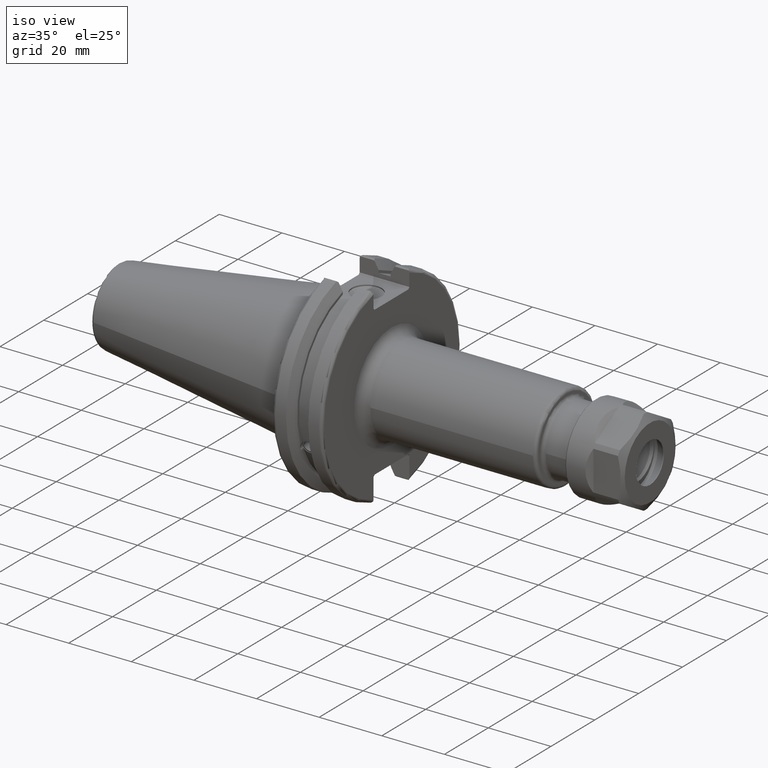
[diagram: clean part render]
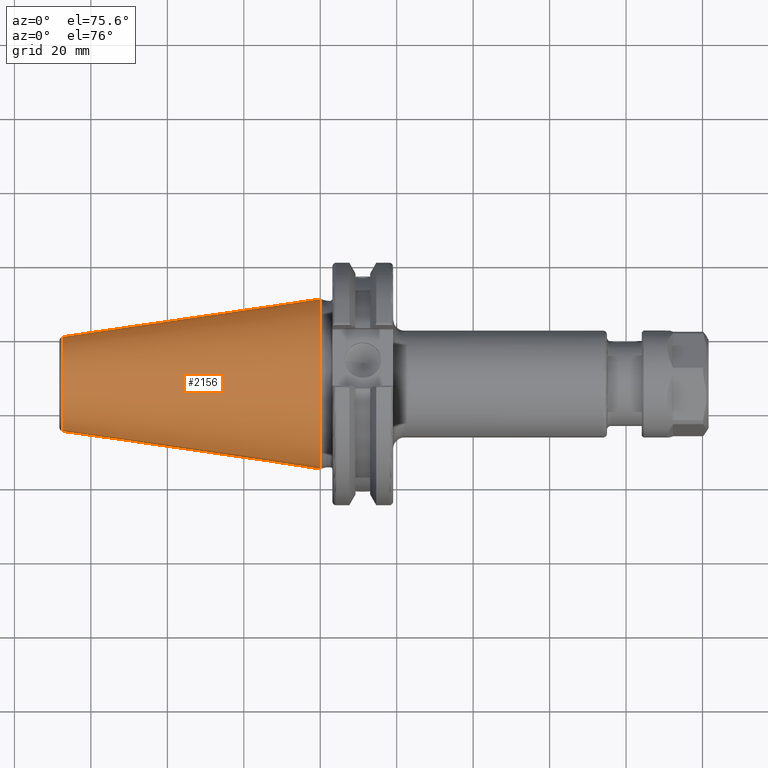
[diagram: tour spotlight — one face highlighted and labeled with its STEP entity id]
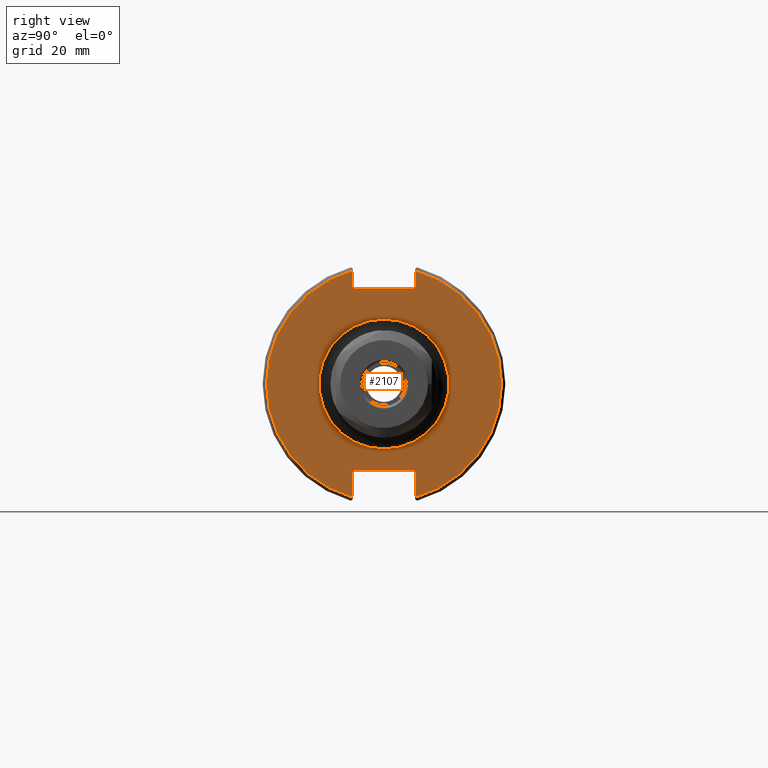
[diagram: tour spotlight — one face highlighted and labeled with its STEP entity id]
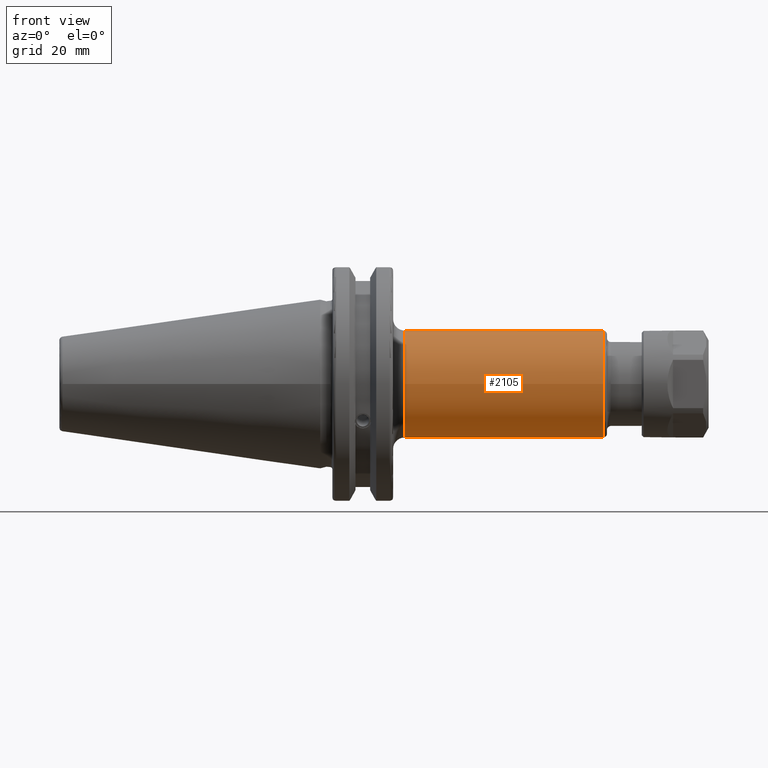
[diagram: tour spotlight — one face highlighted and labeled with its STEP entity id]
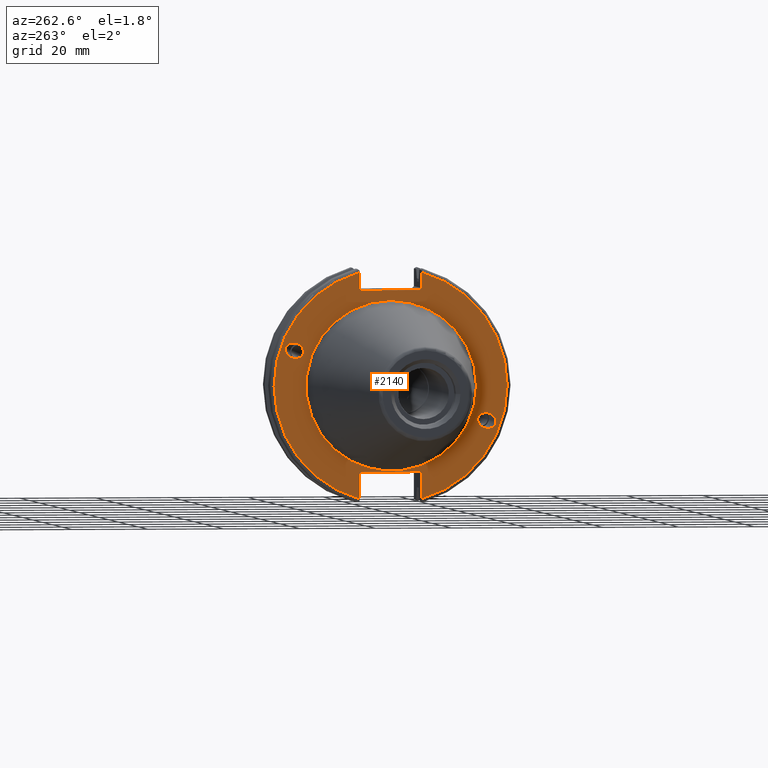
[diagram: tour spotlight — one face highlighted and labeled with its STEP entity id]
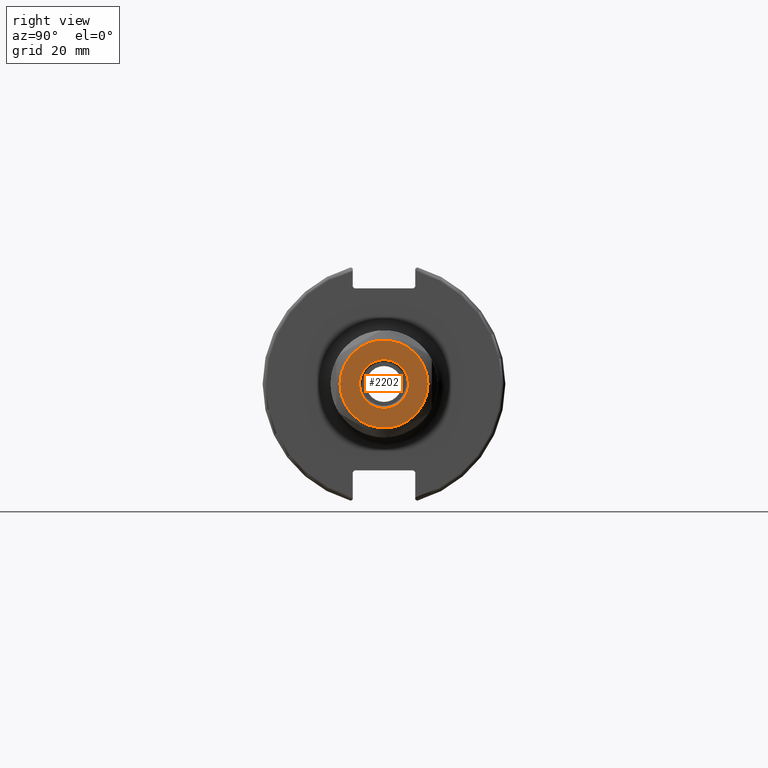
[diagram: tour spotlight — one face highlighted and labeled with its STEP entity id]
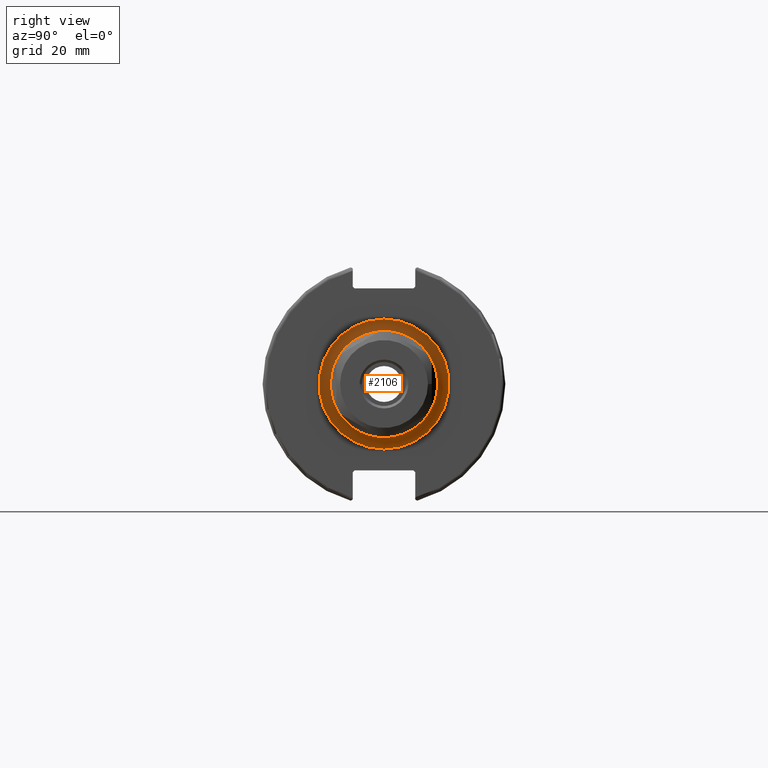
[diagram: tour spotlight — one face highlighted and labeled with its STEP entity id]
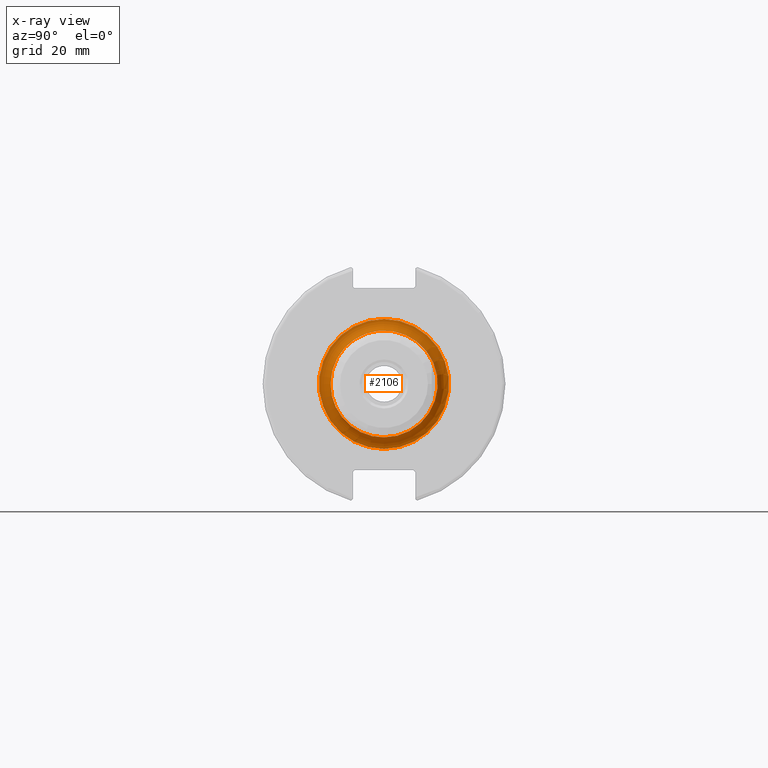
[diagram: x-ray of the same camera — body ghosted, this tour face saturated]
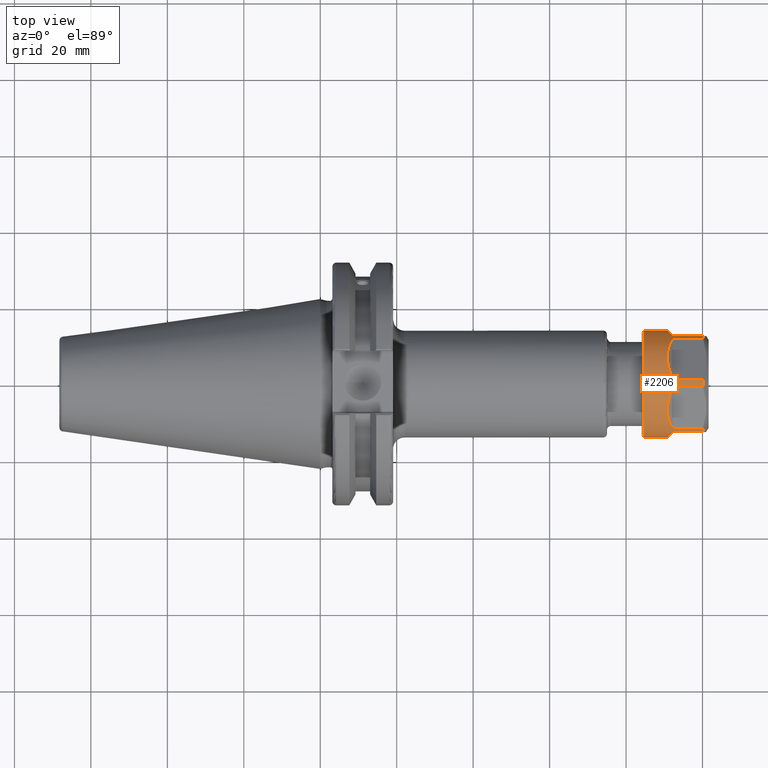
[diagram: tour spotlight — one face highlighted and labeled with its STEP entity id]
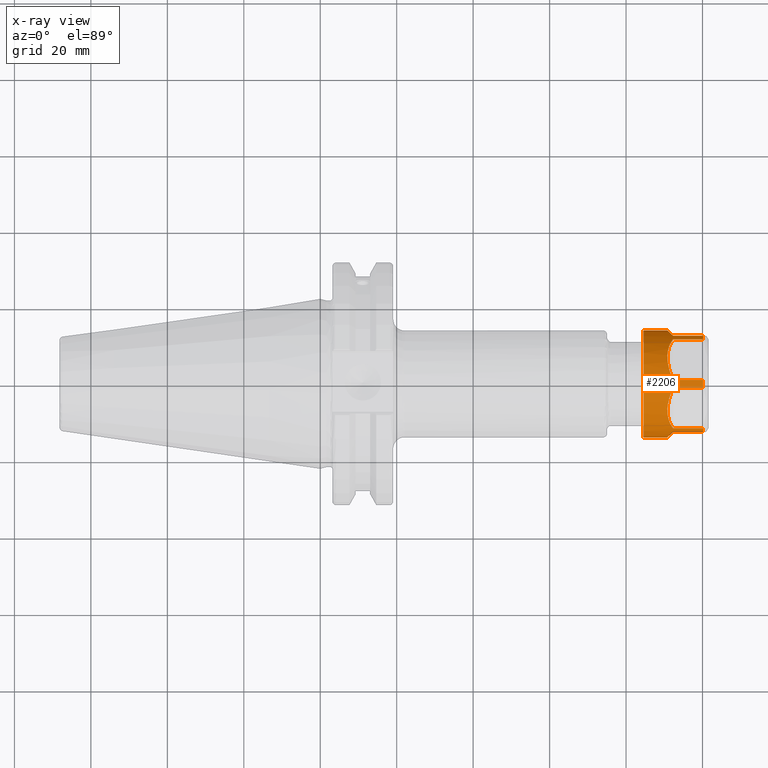
[diagram: x-ray of the same camera — body ghosted, this tour face saturated]
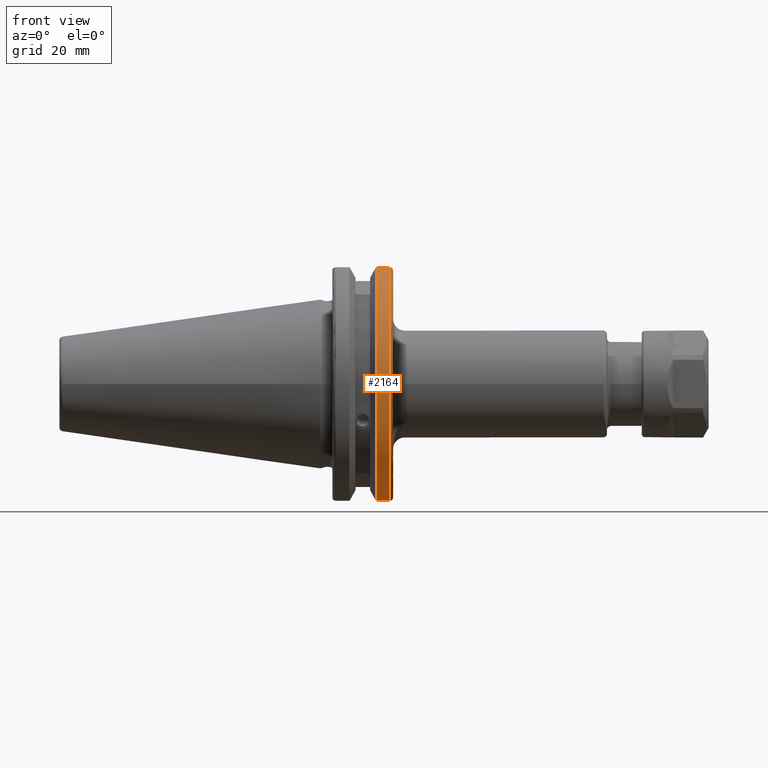
[diagram: tour spotlight — one face highlighted and labeled with its STEP entity id]
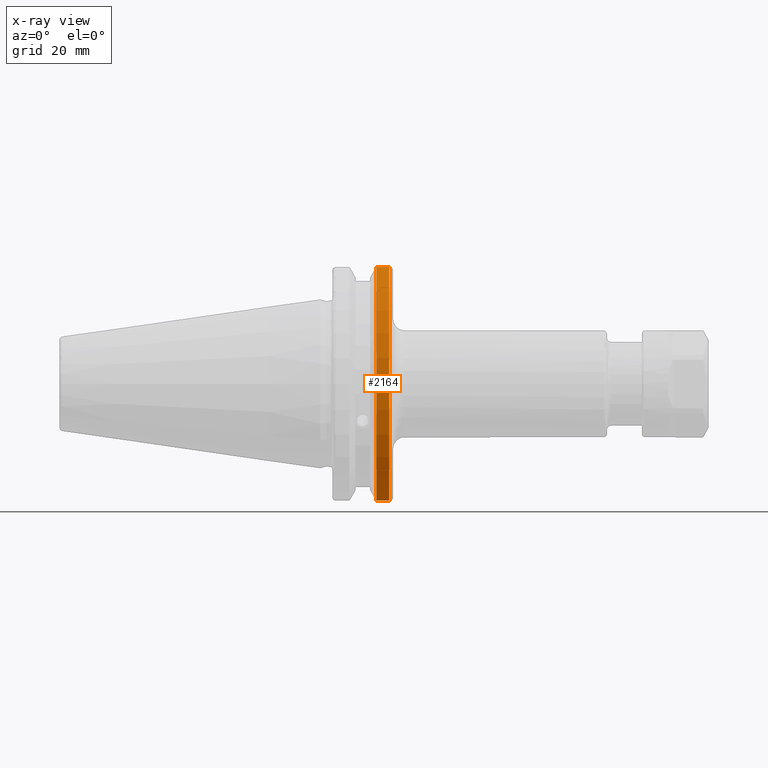
[diagram: x-ray of the same camera — body ghosted, this tour face saturated]
A machine part: a face-by-face anatomy tour. The part has 125 B-rep faces; the first image is the clean iso view, then the 8 largest visible faces are spotlighted one at a time (largest first), each with its STEP entity span.

Face 1 — auxiliary view, entity #2156. In plain terms, the highlighted conical surface has half-angle 8.297 deg.
Definition (entity closure, byte-faithful):
#210=CONICAL_SURFACE('',#2442,17.2484375,0.144812498238939);
#283=FACE_OUTER_BOUND('',#422,.T.);
#422=EDGE_LOOP('',(#1762,#1763,#1764,#1765,#1766));
#569=LINE('',#3948,#703);
#703=VECTOR('',#2941,17.2484375);
#826=CIRCLE('',#2436,12.3966635780937);
#827=CIRCLE('',#2437,12.3966635780937);
#831=CIRCLE('',#2443,22.225);
#1017=VERTEX_POINT('',#3935);
#1018=VERTEX_POINT('',#3936);
#1021=VERTEX_POINT('',#3946);
#1289=EDGE_CURVE('',#1017,#1018,#826,.T.);
#1290=EDGE_CURVE('',#1018,#1017,#827,.T.);
#1294=EDGE_CURVE('',#1021,#1021,#831,.T.);
#1295=EDGE_CURVE('',#1021,#1018,#569,.T.);
#1762=ORIENTED_EDGE('',*,*,#1294,.F.);
#1763=ORIENTED_EDGE('',*,*,#1295,.T.);
#1764=ORIENTED_EDGE('',*,*,#1289,.F.);
#1765=ORIENTED_EDGE('',*,*,#1290,.F.);
#1766=ORIENTED_EDGE('',*,*,#1295,.F.);
#2156=ADVANCED_FACE('',(#283),#210,.T.);
#2436=AXIS2_PLACEMENT_3D('',#3937,#2925,#2926);
#2437=AXIS2_PLACEMENT_3D('',#3938,#2927,#2928);
#2442=AXIS2_PLACEMENT_3D('',#3945,#2937,#2938);
#2443=AXIS2_PLACEMENT_3D('',#3947,#2939,#2940);
#2925=DIRECTION('center_axis',(-1.,0.,0.));
#2926=DIRECTION('ref_axis',(0.,-1.,3.06161699786838E-17));
#2927=DIRECTION('center_axis',(-1.,0.,0.));
#2928=DIRECTION('ref_axis',(0.,-1.,3.06161699786838E-17));
#2937=DIRECTION('center_axis',(1.,0.,0.));
#2938=DIRECTION('ref_axis',(0.,1.,0.));
#2939=DIRECTION('center_axis',(1.,0.,0.));
#2940=DIRECTION('ref_axis',(0.,0.,-1.));
#2941=DIRECTION('',(-0.989532981063282,0.144306893071729,1.76724974695192E-17));
#3935=CARTESIAN_POINT('',(-67.3943068930717,-1.5181534371019E-15,12.3966635780937));
#3936=CARTESIAN_POINT('',(-67.3943068930718,-12.3966635780937,-1.5181534371019E-15));
#3937=CARTESIAN_POINT('Origin',(-67.3943068930717,0.,-1.89769179637738E-15));
#3938=CARTESIAN_POINT('Origin',(-67.3943068930717,0.,-1.89769179637738E-15));
#3945=CARTESIAN_POINT('Origin',(-34.125,0.,0.));
#3946=CARTESIAN_POINT('',(0.,-22.225,-2.72177751110499E-15));
#3947=CARTESIAN_POINT('Origin',(0.,0.,0.));
#3948=CARTESIAN_POINT('',(-34.125,-17.2484375,-2.11232437746682E-15));

Face 2 — right view, entity #2107. In plain terms, the highlighted planar face has unit normal (1, 0, 0).
Definition (entity closure, byte-faithful):
#95=PLANE('',#2330);
#153=FACE_BOUND('',#364,.T.);
#234=FACE_OUTER_BOUND('',#363,.T.);
#363=EDGE_LOOP('',(#1474,#1475,#1476,#1477,#1478,#1479,#1480,#1481,#1482,
#1483,#1484,#1485));
#364=EDGE_LOOP('',(#1486));
#500=LINE('',#3374,#634);
#501=LINE('',#3376,#635);
#502=LINE('',#3378,#636);
#503=LINE('',#3380,#637);
#504=LINE('',#3382,#638);
#505=LINE('',#3386,#639);
#506=LINE('',#3388,#640);
#507=LINE('',#3390,#641);
#508=LINE('',#3392,#642);
#509=LINE('',#3393,#643);
#634=VECTOR('',#2648,10.);
#635=VECTOR('',#2649,10.);
#636=VECTOR('',#2650,10.);
#637=VECTOR('',#2651,10.);
#638=VECTOR('',#2652,10.);
#639=VECTOR('',#2655,10.);
#640=VECTOR('',#2656,10.);
#641=VECTOR('',#2657,10.);
#642=VECTOR('',#2658,10.);
#643=VECTOR('',#2659,10.);
#785=CIRCLE('',#2329,17.);
#786=CIRCLE('',#2331,30.75);
#787=CIRCLE('',#2332,30.75);
#897=VERTEX_POINT('',#3366);
#898=VERTEX_POINT('',#3370);
#899=VERTEX_POINT('',#3371);
#900=VERTEX_POINT('',#3373);
#901=VERTEX_POINT('',#3375);
#902=VERTEX_POINT('',#3377);
#903=VERTEX_POINT('',#3379);
#904=VERTEX_POINT('',#3381);
#905=VERTEX_POINT('',#3383);
#906=VERTEX_POINT('',#3385);
#907=VERTEX_POINT('',#3387);
#908=VERTEX_POINT('',#3389);
#909=VERTEX_POINT('',#3391);
#1121=EDGE_CURVE('',#897,#897,#785,.T.);
#1122=EDGE_CURVE('',#898,#899,#786,.T.);
#1123=EDGE_CURVE('',#898,#900,#500,.T.);
#1124=EDGE_CURVE('',#901,#900,#501,.T.);
#1125=EDGE_CURVE('',#901,#902,#502,.T.);
#1126=EDGE_CURVE('',#903,#902,#503,.T.);
#1127=EDGE_CURVE('',#903,#904,#504,.T.);
#1128=EDGE_CURVE('',#905,#904,#787,.T.);
#1129=EDGE_CURVE('',#905,#906,#505,.T.);
#1130=EDGE_CURVE('',#907,#906,#506,.T.);
#1131=EDGE_CURVE('',#907,#908,#507,.T.);
#1132=EDGE_CURVE('',#909,#908,#508,.T.);
#1133=EDGE_CURVE('',#909,#899,#509,.T.);
#1474=ORIENTED_EDGE('',*,*,#1122,.F.);
#1475=ORIENTED_EDGE('',*,*,#1123,.T.);
#1476=ORIENTED_EDGE('',*,*,#1124,.F.);
#1477=ORIENTED_EDGE('',*,*,#1125,.T.);
#1478=ORIENTED_EDGE('',*,*,#1126,.F.);
#1479=ORIENTED_EDGE('',*,*,#1127,.T.);
#1480=ORIENTED_EDGE('',*,*,#1128,.F.);
#1481=ORIENTED_EDGE('',*,*,#1129,.T.);
#1482=ORIENTED_EDGE('',*,*,#1130,.F.);
#1483=ORIENTED_EDGE('',*,*,#1131,.T.);
#1484=ORIENTED_EDGE('',*,*,#1132,.F.);
#1485=ORIENTED_EDGE('',*,*,#1133,.T.);
#1486=ORIENTED_EDGE('',*,*,#1121,.F.);
#2107=ADVANCED_FACE('',(#234,#153),#95,.T.);
#2329=AXIS2_PLACEMENT_3D('',#3368,#2642,#2643);
#2330=AXIS2_PLACEMENT_3D('',#3369,#2644,#2645);
#2331=AXIS2_PLACEMENT_3D('',#3372,#2646,#2647);
#2332=AXIS2_PLACEMENT_3D('',#3384,#2653,#2654);
#2642=DIRECTION('center_axis',(1.,0.,0.));
#2643=DIRECTION('ref_axis',(0.,-1.,-1.22464679914735E-16));
#2644=DIRECTION('center_axis',(1.,0.,0.));
#2645=DIRECTION('ref_axis',(0.,0.,-1.));
#2646=DIRECTION('center_axis',(-1.,0.,0.));
#2647=DIRECTION('ref_axis',(0.,1.,-6.12323399573677E-17));
#2648=DIRECTION('',(0.,0.,-1.));
#2649=DIRECTION('',(0.,0.707106781186549,0.707106781186546));
#2650=DIRECTION('',(0.,-1.,0.));
#2651=DIRECTION('',(0.,0.70710678118655,-0.707106781186545));
#2652=DIRECTION('',(0.,0.,1.));
#2653=DIRECTION('center_axis',(-1.,0.,0.));
#2654=DIRECTION('ref_axis',(0.,-1.,1.60812264967664E-16));
#2655=DIRECTION('',(0.,0.,1.));
#2656=DIRECTION('',(0.,-0.707106781186549,-0.707106781186546));
#2657=DIRECTION('',(0.,1.,0.));
#2658=DIRECTION('',(0.,-0.707106781186549,0.707106781186546));
#2659=DIRECTION('',(0.,0.,-1.));
#3366=CARTESIAN_POINT('',(19.05,-2.0818995585505E-15,-17.));
#3368=CARTESIAN_POINT('Origin',(19.05,0.,0.));
#3369=CARTESIAN_POINT('Origin',(19.05,0.,0.));
#3370=CARTESIAN_POINT('',(19.05,8.19,29.6392712461019));
#3371=CARTESIAN_POINT('',(19.05,8.19,-29.6392712461019));
#3372=CARTESIAN_POINT('Origin',(19.05,0.,0.));
#3373=CARTESIAN_POINT('',(19.05,8.19,25.5));
#3374=CARTESIAN_POINT('',(19.05,8.19,12.5));
#3375=CARTESIAN_POINT('',(19.05,7.69,25.));
#3376=CARTESIAN_POINT('',(19.05,-0.35750000000001,16.9525));
#3377=CARTESIAN_POINT('',(19.05,-7.69,25.));
#3378=CARTESIAN_POINT('',(19.05,0.,25.));
#3379=CARTESIAN_POINT('',(19.05,-8.19,25.5));
#3380=CARTESIAN_POINT('',(19.05,0.357500000000014,16.9525));
#3381=CARTESIAN_POINT('',(19.05,-8.19,29.6392712461019));
#3382=CARTESIAN_POINT('',(19.05,-8.19,12.5));
#3383=CARTESIAN_POINT('',(19.05,-8.19,-29.6392712461019));
#3384=CARTESIAN_POINT('Origin',(19.05,0.,0.));
#3385=CARTESIAN_POINT('',(19.05,-8.19,-23.1));
#3386=CARTESIAN_POINT('',(19.05,-8.19,-11.3));
#3387=CARTESIAN_POINT('',(19.05,-7.69,-22.6));
#3388=CARTESIAN_POINT('',(19.05,-0.242499999999991,-15.1525));
#3389=CARTESIAN_POINT('',(19.05,7.69,-22.6));
#3390=CARTESIAN_POINT('',(19.05,-2.77555756156289E-16,-22.6));
#3391=CARTESIAN_POINT('',(19.05,8.19,-23.1));
#3392=CARTESIAN_POINT('',(19.05,0.242499999999989,-15.1525));
#3393=CARTESIAN_POINT('',(19.05,8.19,-11.3));

Face 3 — front view, entity #2105. In plain terms, the highlighted cylindrical surface (bore or boss wall) has radius 14 mm, axis along (1, 0, 0).
Definition (entity closure, byte-faithful):
#232=FACE_OUTER_BOUND('',#361,.T.);
#361=EDGE_LOOP('',(#1463,#1464,#1465,#1466,#1467,#1468));
#499=LINE('',#3361,#633);
#633=VECTOR('',#2633,14.);
#780=CIRCLE('',#2322,14.);
#781=CIRCLE('',#2323,14.);
#782=CIRCLE('',#2325,14.);
#783=CIRCLE('',#2326,14.);
#893=VERTEX_POINT('',#3354);
#894=VERTEX_POINT('',#3356);
#895=VERTEX_POINT('',#3360);
#896=VERTEX_POINT('',#3362);
#1115=EDGE_CURVE('',#893,#894,#780,.T.);
#1116=EDGE_CURVE('',#894,#893,#781,.T.);
#1117=EDGE_CURVE('',#894,#895,#499,.T.);
#1118=EDGE_CURVE('',#896,#895,#782,.T.);
#1119=EDGE_CURVE('',#895,#896,#783,.T.);
#1463=ORIENTED_EDGE('',*,*,#1116,.F.);
#1464=ORIENTED_EDGE('',*,*,#1117,.T.);
#1465=ORIENTED_EDGE('',*,*,#1118,.F.);
#1466=ORIENTED_EDGE('',*,*,#1119,.F.);
#1467=ORIENTED_EDGE('',*,*,#1117,.F.);
#1468=ORIENTED_EDGE('',*,*,#1115,.F.);
#2059=CYLINDRICAL_SURFACE('',#2324,14.);
#2105=ADVANCED_FACE('',(#232),#2059,.T.);
#2322=AXIS2_PLACEMENT_3D('',#3357,#2627,#2628);
#2323=AXIS2_PLACEMENT_3D('',#3358,#2629,#2630);
#2324=AXIS2_PLACEMENT_3D('',#3359,#2631,#2632);
#2325=AXIS2_PLACEMENT_3D('',#3363,#2634,#2635);
#2326=AXIS2_PLACEMENT_3D('',#3364,#2636,#2637);
#2627=DIRECTION('center_axis',(1.,0.,0.));
#2628=DIRECTION('ref_axis',(0.,-1.,1.83697019872103E-16));
#2629=DIRECTION('center_axis',(1.,0.,0.));
#2630=DIRECTION('ref_axis',(0.,-1.,1.83697019872103E-16));
#2631=DIRECTION('center_axis',(1.,0.,0.));
#2632=DIRECTION('ref_axis',(0.,1.,0.));
#2633=DIRECTION('',(-1.,0.,0.));
#2634=DIRECTION('center_axis',(-1.,0.,0.));
#2635=DIRECTION('ref_axis',(0.,-1.,-1.22464679914735E-16));
#2636=DIRECTION('center_axis',(-1.,0.,0.));
#2637=DIRECTION('ref_axis',(0.,-1.,-1.22464679914735E-16));
#3354=CARTESIAN_POINT('',(74.,-1.71450551880629E-15,14.));
#3356=CARTESIAN_POINT('',(74.,-14.,-1.71450551880629E-15));
#3357=CARTESIAN_POINT('Origin',(74.,0.,0.));
#3358=CARTESIAN_POINT('Origin',(74.,0.,0.));
#3359=CARTESIAN_POINT('Origin',(47.025,0.,0.));
#3360=CARTESIAN_POINT('',(22.05,-14.,-1.71450551880629E-15));
#3361=CARTESIAN_POINT('',(47.025,-14.,-1.71450551880629E-15));
#3362=CARTESIAN_POINT('',(22.05,-1.71450551880629E-15,-14.));
#3363=CARTESIAN_POINT('Origin',(22.05,0.,0.));
#3364=CARTESIAN_POINT('Origin',(22.05,0.,0.));

Face 4 — auxiliary view, entity #2140. In plain terms, the highlighted planar face has unit normal (-1, 0, 0).
Definition (entity closure, byte-faithful):
#65=ELLIPSE('',#2360,2.44154917752292,2.00000000000001);
#74=ELLIPSE('',#2403,2.44154917752292,2.00000000000001);
#105=PLANE('',#2413);
#159=FACE_BOUND('',#403,.T.);
#160=FACE_BOUND('',#404,.T.);
#161=FACE_BOUND('',#405,.T.);
#267=FACE_OUTER_BOUND('',#402,.T.);
#402=EDGE_LOOP('',(#1655,#1656,#1657,#1658,#1659,#1660,#1661,#1662,#1663,
#1664,#1665,#1666));
#403=EDGE_LOOP('',(#1667));
#404=EDGE_LOOP('',(#1668));
#405=EDGE_LOOP('',(#1669));
#542=LINE('',#3722,#676);
#543=LINE('',#3724,#677);
#544=LINE('',#3726,#678);
#545=LINE('',#3728,#679);
#546=LINE('',#3730,#680);
#547=LINE('',#3734,#681);
#548=LINE('',#3736,#682);
#549=LINE('',#3738,#683);
#550=LINE('',#3740,#684);
#551=LINE('',#3741,#685);
#676=VECTOR('',#2856,10.);
#677=VECTOR('',#2857,10.);
#678=VECTOR('',#2858,10.);
#679=VECTOR('',#2859,10.);
#680=VECTOR('',#2860,10.);
#681=VECTOR('',#2863,10.);
#682=VECTOR('',#2864,10.);
#683=VECTOR('',#2865,10.);
#684=VECTOR('',#2866,10.);
#685=VECTOR('',#2867,10.);
#816=CIRCLE('',#2411,22.3);
#818=CIRCLE('',#2414,30.75);
#819=CIRCLE('',#2415,30.75);
#933=VERTEX_POINT('',#3515);
#973=VERTEX_POINT('',#3698);
#978=VERTEX_POINT('',#3713);
#979=VERTEX_POINT('',#3718);
#980=VERTEX_POINT('',#3719);
#981=VERTEX_POINT('',#3721);
#982=VERTEX_POINT('',#3723);
#983=VERTEX_POINT('',#3725);
#984=VERTEX_POINT('',#3727);
#985=VERTEX_POINT('',#3729);
#986=VERTEX_POINT('',#3731);
#987=VERTEX_POINT('',#3733);
#988=VERTEX_POINT('',#3735);
#989=VERTEX_POINT('',#3737);
#990=VERTEX_POINT('',#3739);
#1167=EDGE_CURVE('',#933,#933,#65,.T.);
#1223=EDGE_CURVE('',#973,#973,#74,.T.);
#1230=EDGE_CURVE('',#978,#978,#816,.T.);
#1232=EDGE_CURVE('',#979,#980,#818,.T.);
#1233=EDGE_CURVE('',#979,#981,#542,.T.);
#1234=EDGE_CURVE('',#982,#981,#543,.T.);
#1235=EDGE_CURVE('',#982,#983,#544,.T.);
#1236=EDGE_CURVE('',#984,#983,#545,.T.);
#1237=EDGE_CURVE('',#984,#985,#546,.T.);
#1238=EDGE_CURVE('',#986,#985,#819,.T.);
#1239=EDGE_CURVE('',#986,#987,#547,.T.);
#1240=EDGE_CURVE('',#988,#987,#548,.T.);
#1241=EDGE_CURVE('',#988,#989,#549,.T.);
#1242=EDGE_CURVE('',#990,#989,#550,.T.);
#1243=EDGE_CURVE('',#990,#980,#551,.T.);
#1655=ORIENTED_EDGE('',*,*,#1232,.F.);
#1656=ORIENTED_EDGE('',*,*,#1233,.T.);
#1657=ORIENTED_EDGE('',*,*,#1234,.F.);
#1658=ORIENTED_EDGE('',*,*,#1235,.T.);
#1659=ORIENTED_EDGE('',*,*,#1236,.F.);
#1660=ORIENTED_EDGE('',*,*,#1237,.T.);
#1661=ORIENTED_EDGE('',*,*,#1238,.F.);
#1662=ORIENTED_EDGE('',*,*,#1239,.T.);
#1663=ORIENTED_EDGE('',*,*,#1240,.F.);
#1664=ORIENTED_EDGE('',*,*,#1241,.T.);
#1665=ORIENTED_EDGE('',*,*,#1242,.F.);
#1666=ORIENTED_EDGE('',*,*,#1243,.T.);
#1667=ORIENTED_EDGE('',*,*,#1167,.T.);
#1668=ORIENTED_EDGE('',*,*,#1223,.T.);
#1669=ORIENTED_EDGE('',*,*,#1230,.F.);
#2140=ADVANCED_FACE('',(#267,#159,#160,#161),#105,.T.);
#2360=AXIS2_PLACEMENT_3D('',#3517,#2727,#2728);
#2403=AXIS2_PLACEMENT_3D('',#3700,#2830,#2831);
#2411=AXIS2_PLACEMENT_3D('',#3715,#2848,#2849);
#2413=AXIS2_PLACEMENT_3D('',#3717,#2852,#2853);
#2414=AXIS2_PLACEMENT_3D('',#3720,#2854,#2855);
#2415=AXIS2_PLACEMENT_3D('',#3732,#2861,#2862);
#2727=DIRECTION('center_axis',(1.,0.,0.));
#2728=DIRECTION('ref_axis',(5.68400912649E-17,-0.939692620785909,-0.342020143325667));
#2830=DIRECTION('center_axis',(1.,0.,0.));
#2831=DIRECTION('ref_axis',(5.68400912649E-17,0.939692620785909,0.342020143325667));
#2848=DIRECTION('center_axis',(-1.,0.,0.));
#2849=DIRECTION('ref_axis',(0.,-1.,1.83697019872103E-16));
#2852=DIRECTION('center_axis',(-1.,0.,0.));
#2853=DIRECTION('ref_axis',(0.,0.,1.));
#2854=DIRECTION('center_axis',(1.,0.,0.));
#2855=DIRECTION('ref_axis',(0.,-1.,1.60812264967664E-16));
#2856=DIRECTION('',(0.,0.,-1.));
#2857=DIRECTION('',(0.,-0.70710678118655,0.707106781186545));
#2858=DIRECTION('',(0.,1.,0.));
#2859=DIRECTION('',(0.,-0.707106781186549,-0.707106781186546));
#2860=DIRECTION('',(0.,0.,1.));
#2861=DIRECTION('center_axis',(1.,0.,0.));
#2862=DIRECTION('ref_axis',(0.,1.,1.60812264967664E-16));
#2863=DIRECTION('',(0.,0.,1.));
#2864=DIRECTION('',(0.,0.707106781186549,-0.707106781186546));
#2865=DIRECTION('',(0.,-1.,0.));
#2866=DIRECTION('',(0.,0.707106781186549,0.707106781186546));
#2867=DIRECTION('',(0.,0.,-1.));
#3515=CARTESIAN_POINT('',(3.175,-23.0773950158153,-8.39948487016));
#3517=CARTESIAN_POINT('Origin',(3.175,-25.3717007612195,-9.23454386979305));
#3698=CARTESIAN_POINT('',(3.175,23.0773950158153,8.39948487016));
#3700=CARTESIAN_POINT('Origin',(3.175,25.3717007612195,9.23454386979306));
#3713=CARTESIAN_POINT('',(3.175,-2.7309623620986E-15,22.3));
#3715=CARTESIAN_POINT('Origin',(3.175,0.,0.));
#3717=CARTESIAN_POINT('Origin',(3.175,31.75,0.));
#3718=CARTESIAN_POINT('',(3.175,-8.18999999999999,29.6392712461019));
#3719=CARTESIAN_POINT('',(3.175,-8.19,-29.6392712461019));
#3720=CARTESIAN_POINT('Origin',(3.175,0.,0.));
#3721=CARTESIAN_POINT('',(3.175,-8.18999999999999,25.5));
#3722=CARTESIAN_POINT('',(3.175,-8.18999999999999,12.5));
#3723=CARTESIAN_POINT('',(3.175,-7.68999999999999,25.));
#3724=CARTESIAN_POINT('',(3.175,8.29500000000007,9.01500000000004));
#3725=CARTESIAN_POINT('',(3.175,7.69,25.));
#3726=CARTESIAN_POINT('',(3.175,15.875,25.));
#3727=CARTESIAN_POINT('',(3.175,8.19,25.5));
#3728=CARTESIAN_POINT('',(3.175,7.58000000000002,24.89));
#3729=CARTESIAN_POINT('',(3.175,8.19,29.6392712461019));
#3730=CARTESIAN_POINT('',(3.175,8.19,12.5));
#3731=CARTESIAN_POINT('',(3.175,8.18999999999999,-29.6392712461019));
#3732=CARTESIAN_POINT('Origin',(3.175,0.,0.));
#3733=CARTESIAN_POINT('',(3.175,8.18999999999999,-23.1));
#3734=CARTESIAN_POINT('',(3.175,8.18999999999999,-11.3));
#3735=CARTESIAN_POINT('',(3.175,7.69,-22.6));
#3736=CARTESIAN_POINT('',(3.175,8.18000000000002,-23.09));
#3737=CARTESIAN_POINT('',(3.175,-7.69,-22.6));
#3738=CARTESIAN_POINT('',(3.175,15.875,-22.6));
#3739=CARTESIAN_POINT('',(3.175,-8.19,-23.1));
#3740=CARTESIAN_POINT('',(3.175,7.69500000000004,-7.21500000000002));
#3741=CARTESIAN_POINT('',(3.175,-8.19,-11.3));

Face 5 — right view, entity #2202. In plain terms, the highlighted planar face has unit normal (1, 0, 0).
Definition (entity closure, byte-faithful):
#136=PLANE('',#2521);
#170=FACE_BOUND('',#476,.T.);
#329=FACE_OUTER_BOUND('',#475,.T.);
#475=EDGE_LOOP('',(#1964));
#476=EDGE_LOOP('',(#1965));
#862=CIRCLE('',#2520,6.4);
#863=CIRCLE('',#2522,11.5);
#1055=VERTEX_POINT('',#4098);
#1056=VERTEX_POINT('',#4102);
#1363=EDGE_CURVE('',#1055,#1055,#862,.T.);
#1364=EDGE_CURVE('',#1056,#1056,#863,.T.);
#1964=ORIENTED_EDGE('',*,*,#1364,.T.);
#1965=ORIENTED_EDGE('',*,*,#1363,.F.);
#2202=ADVANCED_FACE('',(#329,#170),#136,.T.);
#2520=AXIS2_PLACEMENT_3D('',#4100,#3129,#3130);
#2521=AXIS2_PLACEMENT_3D('',#4101,#3131,#3132);
#2522=AXIS2_PLACEMENT_3D('',#4103,#3133,#3134);
#3129=DIRECTION('center_axis',(1.,0.,0.));
#3130=DIRECTION('ref_axis',(0.,1.,0.));
#3131=DIRECTION('center_axis',(1.,0.,0.));
#3132=DIRECTION('ref_axis',(0.,0.,-1.));
#3133=DIRECTION('center_axis',(1.,0.,0.));
#3134=DIRECTION('ref_axis',(0.,0.,1.));
#4098=CARTESIAN_POINT('',(8.75,6.4,0.));
#4100=CARTESIAN_POINT('Origin',(8.75,0.,0.));
#4101=CARTESIAN_POINT('Origin',(8.75,0.,0.));
#4102=CARTESIAN_POINT('',(8.75,0.,11.5));
#4103=CARTESIAN_POINT('Origin',(8.75,0.,0.));

Face 6 — right view, entity #2106. An x-ray twin of the same camera follows (body ghosted, this face saturated) — the face is partly hidden behind the body. In plain terms, the highlighted toroidal blend (fillet) surface has major radius 17 mm and minor (blend) radius 3 mm.
Definition (entity closure, byte-faithful):
#85=TOROIDAL_SURFACE('',#2327,17.,3.);
#233=FACE_OUTER_BOUND('',#362,.T.);
#362=EDGE_LOOP('',(#1469,#1470,#1471,#1472,#1473));
#782=CIRCLE('',#2325,14.);
#783=CIRCLE('',#2326,14.);
#784=CIRCLE('',#2328,3.);
#785=CIRCLE('',#2329,17.);
#895=VERTEX_POINT('',#3360);
#896=VERTEX_POINT('',#3362);
#897=VERTEX_POINT('',#3366);
#1118=EDGE_CURVE('',#896,#895,#782,.T.);
#1119=EDGE_CURVE('',#895,#896,#783,.T.);
#1120=EDGE_CURVE('',#896,#897,#784,.T.);
#1121=EDGE_CURVE('',#897,#897,#785,.T.);
#1469=ORIENTED_EDGE('',*,*,#1119,.T.);
#1470=ORIENTED_EDGE('',*,*,#1120,.T.);
#1471=ORIENTED_EDGE('',*,*,#1121,.T.);
#1472=ORIENTED_EDGE('',*,*,#1120,.F.);
#1473=ORIENTED_EDGE('',*,*,#1118,.T.);
#2106=ADVANCED_FACE('',(#233),#85,.F.);
#2325=AXIS2_PLACEMENT_3D('',#3363,#2634,#2635);
#2326=AXIS2_PLACEMENT_3D('',#3364,#2636,#2637);
#2327=AXIS2_PLACEMENT_3D('',#3365,#2638,#2639);
#2328=AXIS2_PLACEMENT_3D('',#3367,#2640,#2641);
#2329=AXIS2_PLACEMENT_3D('',#3368,#2642,#2643);
#2634=DIRECTION('center_axis',(-1.,0.,0.));
#2635=DIRECTION('ref_axis',(0.,-1.,-1.22464679914735E-16));
#2636=DIRECTION('center_axis',(-1.,0.,0.));
#2637=DIRECTION('ref_axis',(0.,-1.,-1.22464679914735E-16));
#2638=DIRECTION('center_axis',(-1.,0.,0.));
#2639=DIRECTION('ref_axis',(0.,0.,1.));
#2640=DIRECTION('center_axis',(0.,-1.,1.22464679914735E-16));
#2641=DIRECTION('ref_axis',(0.,-1.22464679914735E-16,-1.));
#2642=DIRECTION('center_axis',(1.,0.,0.));
#2643=DIRECTION('ref_axis',(0.,-1.,-1.22464679914735E-16));
#3360=CARTESIAN_POINT('',(22.05,-14.,-1.71450551880629E-15));
#3362=CARTESIAN_POINT('',(22.05,-1.71450551880629E-15,-14.));
#3363=CARTESIAN_POINT('Origin',(22.05,0.,0.));
#3364=CARTESIAN_POINT('Origin',(22.05,0.,0.));
#3365=CARTESIAN_POINT('Origin',(22.05,0.,0.));
#3366=CARTESIAN_POINT('',(19.05,-2.0818995585505E-15,-17.));
#3367=CARTESIAN_POINT('Origin',(22.05,-2.0818995585505E-15,-17.));
#3368=CARTESIAN_POINT('Origin',(19.05,0.,0.));

Face 7 — top view, entity #2206. An x-ray twin of the same camera follows (body ghosted, this face saturated) — the face is partly hidden behind the body. In plain terms, the highlighted cylindrical surface (bore or boss wall) has radius 14 mm, axis along (1, 0, 0).
Definition (entity closure, byte-faithful):
#75=ELLIPSE('',#2532,19.7989898732233,14.);
#76=ELLIPSE('',#2534,19.7989898732243,14.);
#77=ELLIPSE('',#2535,19.7989898732243,14.);
#78=ELLIPSE('',#2536,19.7989898732233,14.);
#79=ELLIPSE('',#2538,19.7989898732233,14.);
#80=ELLIPSE('',#2539,19.7989898732243,14.);
#81=ELLIPSE('',#2540,19.7989898732243,14.);
#333=FACE_OUTER_BOUND('',#480,.T.);
#480=EDGE_LOOP('',(#1988,#1989,#1990,#1991,#1992,#1993,#1994,#1995,#1996,
#1997,#1998,#1999,#2000,#2001,#2002,#2003,#2004,#2005,#2006,#2007,#2008,
#2009,#2010,#2011,#2012,#2013,#2014,#2015));
#607=LINE('',#4150,#741);
#608=LINE('',#4151,#742);
#609=LINE('',#4156,#743);
#610=LINE('',#4159,#744);
#611=LINE('',#4161,#745);
#612=LINE('',#4164,#746);
#613=LINE('',#4166,#747);
#614=LINE('',#4170,#748);
#615=LINE('',#4174,#749);
#616=LINE('',#4176,#750);
#617=LINE('',#4179,#751);
#618=LINE('',#4181,#752);
#619=LINE('',#4184,#753);
#741=VECTOR('',#3153,7.856624327026);
#742=VECTOR('',#3154,7.856624327026);
#743=VECTOR('',#3161,7.856624327026);
#744=VECTOR('',#3164,7.856624327026);
#745=VECTOR('',#3165,7.856624327026);
#746=VECTOR('',#3168,7.856624327026);
#747=VECTOR('',#3169,7.856624327026);
#748=VECTOR('',#3172,14.);
#749=VECTOR('',#3177,7.856624327026);
#750=VECTOR('',#3178,7.856624327026);
#751=VECTOR('',#3181,7.856624327026);
#752=VECTOR('',#3182,7.856624327026);
#753=VECTOR('',#3185,7.856624327026);
#864=CIRCLE('',#2524,14.);
#865=CIRCLE('',#2525,14.);
#866=CIRCLE('',#2526,14.);
#867=CIRCLE('',#2527,14.);
#868=CIRCLE('',#2528,14.);
#869=CIRCLE('',#2529,14.);
#870=CIRCLE('',#2537,14.);
#1057=VERTEX_POINT('',#4105);
#1059=VERTEX_POINT('',#4110);
#1060=VERTEX_POINT('',#4112);
#1061=VERTEX_POINT('',#4116);
#1062=VERTEX_POINT('',#4118);
#1063=VERTEX_POINT('',#4122);
#1064=VERTEX_POINT('',#4124);
#1065=VERTEX_POINT('',#4128);
#1066=VERTEX_POINT('',#4130);
#1067=VERTEX_POINT('',#4134);
#1068=VERTEX_POINT('',#4136);
#1069=VERTEX_POINT('',#4140);
#1070=VERTEX_POINT('',#4147);
#1071=VERTEX_POINT('',#4148);
#1072=VERTEX_POINT('',#4155);
#1073=VERTEX_POINT('',#4157);
#1074=VERTEX_POINT('',#4160);
#1075=VERTEX_POINT('',#4162);
#1076=VERTEX_POINT('',#4165);
#1077=VERTEX_POINT('',#4167);
#1078=VERTEX_POINT('',#4169);
#1079=VERTEX_POINT('',#4172);
#1080=VERTEX_POINT('',#4175);
#1081=VERTEX_POINT('',#4177);
#1082=VERTEX_POINT('',#4180);
#1083=VERTEX_POINT('',#4182);
#1366=EDGE_CURVE('',#1057,#1059,#864,.T.);
#1368=EDGE_CURVE('',#1060,#1061,#865,.T.);
#1370=EDGE_CURVE('',#1062,#1063,#866,.T.);
#1372=EDGE_CURVE('',#1064,#1065,#867,.T.);
#1374=EDGE_CURVE('',#1066,#1067,#868,.T.);
#1376=EDGE_CURVE('',#1068,#1069,#869,.T.);
#1380=EDGE_CURVE('',#1070,#1064,#607,.T.);
#1381=EDGE_CURVE('',#1071,#1063,#608,.T.);
#1382=EDGE_CURVE('',#1071,#1070,#75,.T.);
#1383=EDGE_CURVE('',#1072,#1062,#609,.T.);
#1384=EDGE_CURVE('',#1073,#1072,#76,.T.);
#1385=EDGE_CURVE('',#1073,#1061,#610,.T.);
#1386=EDGE_CURVE('',#1074,#1060,#611,.T.);
#1387=EDGE_CURVE('',#1075,#1074,#77,.T.);
#1388=EDGE_CURVE('',#1075,#1059,#612,.T.);
#1389=EDGE_CURVE('',#1076,#1057,#613,.T.);
#1390=EDGE_CURVE('',#1077,#1076,#78,.T.);
#1391=EDGE_CURVE('',#1077,#1078,#614,.T.);
#1392=EDGE_CURVE('',#1078,#1078,#870,.T.);
#1393=EDGE_CURVE('',#1079,#1077,#79,.T.);
#1394=EDGE_CURVE('',#1079,#1069,#615,.T.);
#1395=EDGE_CURVE('',#1080,#1068,#616,.T.);
#1396=EDGE_CURVE('',#1081,#1080,#80,.T.);
#1397=EDGE_CURVE('',#1081,#1067,#617,.T.);
#1398=EDGE_CURVE('',#1082,#1066,#618,.T.);
#1399=EDGE_CURVE('',#1083,#1082,#81,.T.);
#1400=EDGE_CURVE('',#1083,#1065,#619,.T.);
#1988=ORIENTED_EDGE('',*,*,#1382,.F.);
#1989=ORIENTED_EDGE('',*,*,#1381,.T.);
#1990=ORIENTED_EDGE('',*,*,#1370,.F.);
#1991=ORIENTED_EDGE('',*,*,#1383,.F.);
#1992=ORIENTED_EDGE('',*,*,#1384,.F.);
#1993=ORIENTED_EDGE('',*,*,#1385,.T.);
#1994=ORIENTED_EDGE('',*,*,#1368,.F.);
#1995=ORIENTED_EDGE('',*,*,#1386,.F.);
#1996=ORIENTED_EDGE('',*,*,#1387,.F.);
#1997=ORIENTED_EDGE('',*,*,#1388,.T.);
#1998=ORIENTED_EDGE('',*,*,#1366,.F.);
#1999=ORIENTED_EDGE('',*,*,#1389,.F.);
#2000=ORIENTED_EDGE('',*,*,#1390,.F.);
#2001=ORIENTED_EDGE('',*,*,#1391,.T.);
#2002=ORIENTED_EDGE('',*,*,#1392,.F.);
#2003=ORIENTED_EDGE('',*,*,#1391,.F.);
#2004=ORIENTED_EDGE('',*,*,#1393,.F.);
#2005=ORIENTED_EDGE('',*,*,#1394,.T.);
#2006=ORIENTED_EDGE('',*,*,#1376,.F.);
#2007=ORIENTED_EDGE('',*,*,#1395,.F.);
#2008=ORIENTED_EDGE('',*,*,#1396,.F.);
#2009=ORIENTED_EDGE('',*,*,#1397,.T.);
#2010=ORIENTED_EDGE('',*,*,#1374,.F.);
#2011=ORIENTED_EDGE('',*,*,#1398,.F.);
#2012=ORIENTED_EDGE('',*,*,#1399,.F.);
#2013=ORIENTED_EDGE('',*,*,#1400,.T.);
#2014=ORIENTED_EDGE('',*,*,#1372,.F.);
#2015=ORIENTED_EDGE('',*,*,#1380,.F.);
#2092=CYLINDRICAL_SURFACE('',#2533,14.);
#2206=ADVANCED_FACE('',(#333),#2092,.T.);
#2524=AXIS2_PLACEMENT_3D('',#4111,#3137,#3138);
#2525=AXIS2_PLACEMENT_3D('',#4117,#3139,#3140);
#2526=AXIS2_PLACEMENT_3D('',#4123,#3141,#3142);
#2527=AXIS2_PLACEMENT_3D('',#4129,#3143,#3144);
#2528=AXIS2_PLACEMENT_3D('',#4135,#3145,#3146);
#2529=AXIS2_PLACEMENT_3D('',#4141,#3147,#3148);
#2532=AXIS2_PLACEMENT_3D('',#4153,#3157,#3158);
#2533=AXIS2_PLACEMENT_3D('',#4154,#3159,#3160);
#2534=AXIS2_PLACEMENT_3D('',#4158,#3162,#3163);
#2535=AXIS2_PLACEMENT_3D('',#4163,#3166,#3167);
#2536=AXIS2_PLACEMENT_3D('',#4168,#3170,#3171);
#2537=AXIS2_PLACEMENT_3D('',#4171,#3173,#3174);
#2538=AXIS2_PLACEMENT_3D('',#4173,#3175,#3176);
#2539=AXIS2_PLACEMENT_3D('',#4178,#3179,#3180);
#2540=AXIS2_PLACEMENT_3D('',#4183,#3183,#3184);
#3137=DIRECTION('center_axis',(1.,0.,0.));
#3138=DIRECTION('ref_axis',(0.,-0.450340007604224,0.892857142857147));
#3139=DIRECTION('center_axis',(1.,0.,0.));
#3140=DIRECTION('ref_axis',(0.,-0.998406971466793,0.0564226845028296));
#3141=DIRECTION('center_axis',(1.,0.,0.));
#3142=DIRECTION('ref_axis',(0.,-0.548066963862595,-0.836434458354292));
#3143=DIRECTION('center_axis',(1.,0.,0.));
#3144=DIRECTION('ref_axis',(0.,0.450340007604224,-0.892857142857147));
#3145=DIRECTION('center_axis',(1.,0.,0.));
#3146=DIRECTION('ref_axis',(0.,0.998406971466793,-0.0564226845028296));
#3147=DIRECTION('center_axis',(1.,0.,0.));
#3148=DIRECTION('ref_axis',(0.,0.548066963862595,0.836434458354292));
#3153=DIRECTION('',(1.,0.,0.));
#3154=DIRECTION('',(1.,0.,0.));
#3157=DIRECTION('center_axis',(0.707106781186548,0.,-0.707106781186548));
#3158=DIRECTION('ref_axis',(-0.707106781186547,0.,-0.707106781186547));
#3159=DIRECTION('center_axis',(1.,0.,0.));
#3160=DIRECTION('ref_axis',(0.,0.,-1.));
#3161=DIRECTION('',(1.,0.,0.));
#3162=DIRECTION('center_axis',(0.707106781186515,-0.612372435695813,-0.353553390593307));
#3163=DIRECTION('ref_axis',(-0.70710678118658,-0.612372435695756,-0.353553390593275));
#3164=DIRECTION('',(1.,0.,0.));
#3165=DIRECTION('',(1.,0.,0.));
#3166=DIRECTION('center_axis',(0.707106781186515,-0.612372435695813,0.353553390593307));
#3167=DIRECTION('ref_axis',(0.70710678118658,0.612372435695756,-0.353553390593275));
#3168=DIRECTION('',(1.,0.,0.));
#3169=DIRECTION('',(1.,0.,0.));
#3170=DIRECTION('center_axis',(0.707106781186548,0.,0.707106781186548));
#3171=DIRECTION('ref_axis',(0.707106781186547,0.,-0.707106781186547));
#3172=DIRECTION('',(-1.,0.,0.));
#3173=DIRECTION('center_axis',(-1.,0.,0.));
#3174=DIRECTION('ref_axis',(0.,0.,1.));
#3175=DIRECTION('center_axis',(0.707106781186548,0.,0.707106781186548));
#3176=DIRECTION('ref_axis',(0.707106781186547,0.,-0.707106781186547));
#3177=DIRECTION('',(1.,0.,0.));
#3178=DIRECTION('',(1.,0.,0.));
#3179=DIRECTION('center_axis',(0.707106781186515,0.612372435695813,0.353553390593307));
#3180=DIRECTION('ref_axis',(0.70710678118658,-0.612372435695756,-0.353553390593275));
#3181=DIRECTION('',(1.,0.,0.));
#3182=DIRECTION('',(1.,0.,0.));
#3183=DIRECTION('center_axis',(0.707106781186515,0.612372435695813,-0.353553390593307));
#3184=DIRECTION('ref_axis',(-0.70710678118658,0.612372435695756,-0.353553390593275));
#3185=DIRECTION('',(1.,0.,0.));
#4105=CARTESIAN_POINT('',(7.306624327026,-6.304760106459,12.5));
#4110=CARTESIAN_POINT('',(7.306624327026,-7.672937494076,11.71008241696));
#4111=CARTESIAN_POINT('Origin',(7.306624327026,0.,0.));
#4112=CARTESIAN_POINT('',(7.306624327026,-13.97769760054,0.7899175830396));
#4116=CARTESIAN_POINT('',(7.306624327026,-13.97769760054,-0.7899175830396));
#4117=CARTESIAN_POINT('Origin',(7.306624327026,0.,0.));
#4118=CARTESIAN_POINT('',(7.306624327026,-7.672937494076,-11.71008241696));
#4122=CARTESIAN_POINT('',(7.306624327026,-6.304760106459,-12.5));
#4123=CARTESIAN_POINT('Origin',(7.306624327026,0.,0.));
#4124=CARTESIAN_POINT('',(7.306624327026,6.304760106459,-12.5));
#4128=CARTESIAN_POINT('',(7.306624327026,7.672937494076,-11.71008241696));
#4129=CARTESIAN_POINT('Origin',(7.306624327026,0.,0.));
#4130=CARTESIAN_POINT('',(7.306624327026,13.97769760054,-0.7899175830396));
#4134=CARTESIAN_POINT('',(7.306624327026,13.97769760054,0.7899175830396));
#4135=CARTESIAN_POINT('Origin',(7.306624327026,0.,0.));
#4136=CARTESIAN_POINT('',(7.306624327026,7.672937494076,11.71008241696));
#4140=CARTESIAN_POINT('',(7.306624327026,6.304760106459,12.5));
#4141=CARTESIAN_POINT('Origin',(7.306624327026,0.,0.));
#4147=CARTESIAN_POINT('',(-0.55,6.304760106459,-12.5));
#4148=CARTESIAN_POINT('',(-0.55,-6.304760106459,-12.5));
#4150=CARTESIAN_POINT('',(-0.55,6.304760106459,-12.5));
#4151=CARTESIAN_POINT('',(-0.55,-6.304760106459,-12.5));
#4153=CARTESIAN_POINT('Origin',(11.95,0.,0.));
#4154=CARTESIAN_POINT('Origin',(-8.75,0.,0.));
#4155=CARTESIAN_POINT('',(-0.55,-7.672937494076,-11.71008241696));
#4156=CARTESIAN_POINT('',(-0.55,-7.672937494076,-11.71008241696));
#4157=CARTESIAN_POINT('',(-0.55,-13.97769760054,-0.7899175830396));
#4158=CARTESIAN_POINT('Origin',(11.9499999999988,0.,0.));
#4159=CARTESIAN_POINT('',(-0.55,-13.97769760054,-0.7899175830396));
#4160=CARTESIAN_POINT('',(-0.55,-13.97769760054,0.7899175830396));
#4161=CARTESIAN_POINT('',(-0.55,-13.97769760054,0.7899175830396));
#4162=CARTESIAN_POINT('',(-0.55,-7.672937494076,11.71008241696));
#4163=CARTESIAN_POINT('Origin',(11.950000000005,0.,0.));
#4164=CARTESIAN_POINT('',(-0.55,-7.672937494076,11.71008241696));
#4165=CARTESIAN_POINT('',(-0.55,-6.304760106459,12.5));
#4166=CARTESIAN_POINT('',(-0.55,-6.304760106459,12.5));
#4167=CARTESIAN_POINT('',(-2.05,-1.71450551880629E-15,14.));
#4168=CARTESIAN_POINT('Origin',(11.95,0.,0.));
#4169=CARTESIAN_POINT('',(-8.25,-1.71450551880629E-15,14.));
#4170=CARTESIAN_POINT('',(-8.75,-1.71450551880629E-15,14.));
#4171=CARTESIAN_POINT('Origin',(-8.25,0.,0.));
#4172=CARTESIAN_POINT('',(-0.55,6.304760106459,12.5));
#4173=CARTESIAN_POINT('Origin',(11.95,0.,0.));
#4174=CARTESIAN_POINT('',(-0.55,6.304760106459,12.5));
#4175=CARTESIAN_POINT('',(-0.55,7.672937494076,11.71008241696));
#4176=CARTESIAN_POINT('',(-0.55,7.672937494076,11.71008241696));
#4177=CARTESIAN_POINT('',(-0.55,13.97769760054,0.7899175830396));
#4178=CARTESIAN_POINT('Origin',(11.9499999999988,0.,0.));
#4179=CARTESIAN_POINT('',(-0.55,13.97769760054,0.7899175830396));
#4180=CARTESIAN_POINT('',(-0.55,13.97769760054,-0.7899175830396));
#4181=CARTESIAN_POINT('',(-0.55,13.97769760054,-0.7899175830396));
#4182=CARTESIAN_POINT('',(-0.55,7.672937494076,-11.71008241696));
#4183=CARTESIAN_POINT('Origin',(11.950000000005,0.,0.));
#4184=CARTESIAN_POINT('',(-0.55,7.672937494076,-11.71008241696));

Face 8 — front view, entity #2164. An x-ray twin of the same camera follows (body ghosted, this face saturated) — the face is partly hidden behind the body. In plain terms, the highlighted cylindrical surface (partial cylindrical patch) has radius 31.75 mm, axis along (1, 0, 0).
Definition (entity closure, byte-faithful):
#291=FACE_OUTER_BOUND('',#430,.T.);
#430=EDGE_LOOP('',(#1803,#1804,#1805,#1806));
#580=LINE('',#3973,#714);
#581=LINE('',#3975,#715);
#714=VECTOR('',#2966,10.);
#715=VECTOR('',#2969,10.);
#796=CIRCLE('',#2363,31.75);
#822=CIRCLE('',#2423,31.75);
#936=VERTEX_POINT('',#3525);
#937=VERTEX_POINT('',#3529);
#1001=VERTEX_POINT('',#3816);
#1002=VERTEX_POINT('',#3825);
#1171=EDGE_CURVE('',#937,#936,#796,.T.);
#1261=EDGE_CURVE('',#1001,#1002,#822,.T.);
#1307=EDGE_CURVE('',#1002,#936,#580,.T.);
#1308=EDGE_CURVE('',#937,#1001,#581,.T.);
#1803=ORIENTED_EDGE('',*,*,#1261,.F.);
#1804=ORIENTED_EDGE('',*,*,#1308,.F.);
#1805=ORIENTED_EDGE('',*,*,#1171,.T.);
#1806=ORIENTED_EDGE('',*,*,#1307,.F.);
#2078=CYLINDRICAL_SURFACE('',#2451,31.75);
#2164=ADVANCED_FACE('',(#291),#2078,.T.);
#2363=AXIS2_PLACEMENT_3D('',#3530,#2733,#2734);
#2423=AXIS2_PLACEMENT_3D('',#3826,#2887,#2888);
#2451=AXIS2_PLACEMENT_3D('',#3974,#2967,#2968);
#2733=DIRECTION('center_axis',(1.,0.,0.));
#2734=DIRECTION('ref_axis',(0.,0.,-1.));
#2887=DIRECTION('center_axis',(1.,0.,0.));
#2888=DIRECTION('ref_axis',(0.,-1.,1.60812264967664E-16));
#2966=DIRECTION('',(-1.,0.,0.));
#2967=DIRECTION('center_axis',(1.,0.,0.));
#2968=DIRECTION('ref_axis',(0.,-1.,1.22464679914735E-16));
#2969=DIRECTION('',(1.,0.,0.));
#3525=CARTESIAN_POINT('',(14.6602667690756,-8.67204822802686,-30.5427254764662));
#3529=CARTESIAN_POINT('',(14.6602667690756,-8.67204822802685,30.5427254764662));
#3530=CARTESIAN_POINT('Origin',(14.6602667690756,0.,0.));
#3816=CARTESIAN_POINT('',(18.05,-8.67204822802685,30.5427254764662));
#3825=CARTESIAN_POINT('',(18.05,-8.67204822802686,-30.5427254764662));
#3826=CARTESIAN_POINT('Origin',(18.05,0.,0.));
#3973=CARTESIAN_POINT('',(16.8551333845378,-8.67204822802686,-30.5427254764662));
#3974=CARTESIAN_POINT('Origin',(16.8551333845378,0.,0.));
#3975=CARTESIAN_POINT('',(16.8551333845378,-8.67204822802685,30.5427254764662));